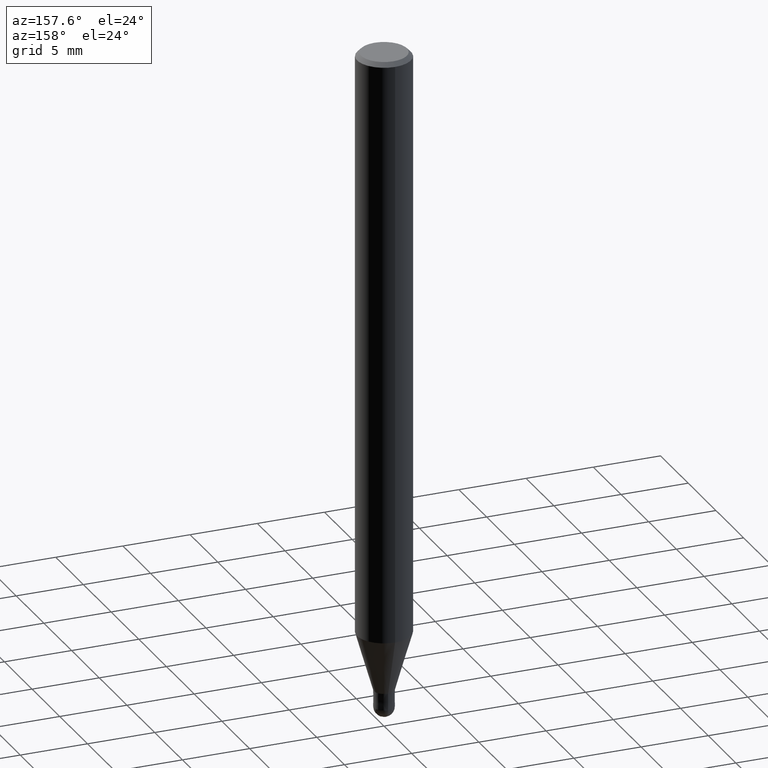
[diagram: clean part render]
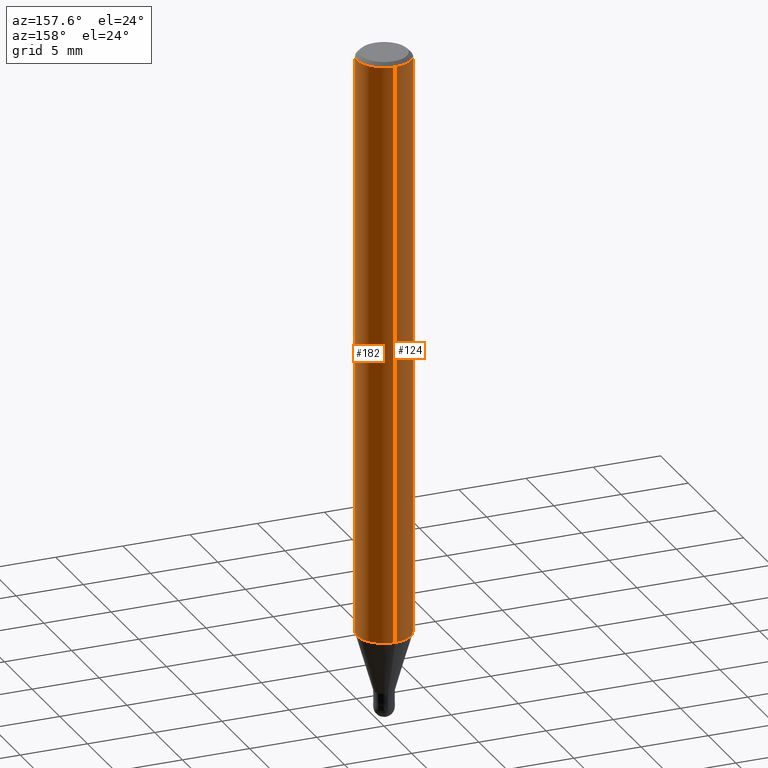
[diagram: same view with one multi-face feature highlighted, each face labeled with its STEP entity id]
A machine part, auxiliary view. The highlighted faces form ONE feature: a constant-radius fillet chain: 2 tangent blend faces with common blend radius 2 mm. The faces share edges in the B-rep.
Their STEP definitions:
[1] entity #182 (Cylinder):
#102=EDGE_CURVE('',#180,#164,#231,.T.);
#118=EDGE_CURVE('',#156,#130,#247,.T.);
#130=VERTEX_POINT('',#262);
#132=EDGE_CURVE('',#156,#164,#264,.T.);
#140=EDGE_CURVE('',#130,#180,#274,.T.);
#156=VERTEX_POINT('',#293);
#164=VERTEX_POINT('',#302);
#180=VERTEX_POINT('',#319);
#182=ADVANCED_FACE('',(#321),#322,.T.);
#231=LINE('',#367,#368);
#247=LINE('',#390,#391);
#262=CARTESIAN_POINT('',(0.0,2.0,-43.641));
#264=CIRCLE('',#414,2.0);
#274=CIRCLE('',#426,2.0);
#293=CARTESIAN_POINT('',(0.0,2.0,-0.299999999999997));
#302=CARTESIAN_POINT('',(2.44921270764475E-016,-2.0,-0.299999999999997));
#319=CARTESIAN_POINT('',(2.44921270764475E-016,-2.0,-43.641));
#321=FACE_OUTER_BOUND('',#479,.T.);
#322=CYLINDRICAL_SURFACE('',#480,2.0);
#367=CARTESIAN_POINT('',(2.44921270764475E-016,-2.0,-21.9705));
#368=VECTOR('',#523,1.0);
#390=CARTESIAN_POINT('',(-2.44921270764475E-016,2.0,-21.9705));
#391=VECTOR('',#538,1.0);
#414=AXIS2_PLACEMENT_3D('',#560,#561,#562);
#426=AXIS2_PLACEMENT_3D('',#582,#583,#584);
#479=EDGE_LOOP('',(#639,#640,#641,#642));
#480=AXIS2_PLACEMENT_3D('',#643,#644,#645);
#523=DIRECTION('',(-0.0,-0.0,1.0));
#538=DIRECTION('',(0.0,0.0,-1.0));
#560=CARTESIAN_POINT('',(0.0,0.0,-0.299999999999997));
#561=DIRECTION('',(0.0,0.0,-1.0));
#562=DIRECTION('',(0.0,1.0,0.0));
#582=CARTESIAN_POINT('',(0.0,0.0,-43.641));
#583=DIRECTION('',(0.0,0.0,-1.0));
#584=DIRECTION('',(0.0,1.0,0.0));
#639=ORIENTED_EDGE('',*,*,#118,.F.);
#640=ORIENTED_EDGE('',*,*,#132,.T.);
#641=ORIENTED_EDGE('',*,*,#102,.F.);
#642=ORIENTED_EDGE('',*,*,#140,.F.);
#643=CARTESIAN_POINT('',(0.0,0.0,-21.9705));
#644=DIRECTION('',(-0.0,-0.0,1.0));
#645=DIRECTION('',(0.0,1.0,0.0));
[2] entity #124 (Cylinder):
#102=EDGE_CURVE('',#180,#164,#231,.T.);
#118=EDGE_CURVE('',#156,#130,#247,.T.);
#124=ADVANCED_FACE('',(#255),#256,.T.);
#130=VERTEX_POINT('',#262);
#150=EDGE_CURVE('',#164,#156,#285,.T.);
#156=VERTEX_POINT('',#293);
#164=VERTEX_POINT('',#302);
#180=VERTEX_POINT('',#319);
#188=EDGE_CURVE('',#180,#130,#328,.T.);
#231=LINE('',#367,#368);
#247=LINE('',#390,#391);
#255=FACE_OUTER_BOUND('',#400,.T.);
#256=CYLINDRICAL_SURFACE('',#401,2.0);
#262=CARTESIAN_POINT('',(0.0,2.0,-43.641));
#285=CIRCLE('',#438,2.0);
#293=CARTESIAN_POINT('',(0.0,2.0,-0.299999999999997));
#302=CARTESIAN_POINT('',(2.44921270764475E-016,-2.0,-0.299999999999997));
#319=CARTESIAN_POINT('',(2.44921270764475E-016,-2.0,-43.641));
#328=CIRCLE('',#487,2.0);
#367=CARTESIAN_POINT('',(2.44921270764475E-016,-2.0,-21.9705));
#368=VECTOR('',#523,1.0);
#390=CARTESIAN_POINT('',(-2.44921270764475E-016,2.0,-21.9705));
#391=VECTOR('',#538,1.0);
#400=EDGE_LOOP('',(#551,#552,#553,#554));
#401=AXIS2_PLACEMENT_3D('',#555,#556,#557);
#438=AXIS2_PLACEMENT_3D('',#595,#596,#597);
#487=AXIS2_PLACEMENT_3D('',#646,#647,#648);
#523=DIRECTION('',(-0.0,-0.0,1.0));
#538=DIRECTION('',(0.0,0.0,-1.0));
#551=ORIENTED_EDGE('',*,*,#118,.T.);
#552=ORIENTED_EDGE('',*,*,#188,.F.);
#553=ORIENTED_EDGE('',*,*,#102,.T.);
#554=ORIENTED_EDGE('',*,*,#150,.T.);
#555=CARTESIAN_POINT('',(0.0,0.0,-21.9705));
#556=DIRECTION('',(-0.0,-0.0,1.0));
#557=DIRECTION('',(0.0,1.0,0.0));
#595=CARTESIAN_POINT('',(0.0,0.0,-0.299999999999997));
#596=DIRECTION('',(0.0,0.0,-1.0));
#597=DIRECTION('',(0.0,1.0,0.0));
#646=CARTESIAN_POINT('',(0.0,0.0,-43.641));
#647=DIRECTION('',(0.0,0.0,-1.0));
#648=DIRECTION('',(0.0,1.0,0.0));